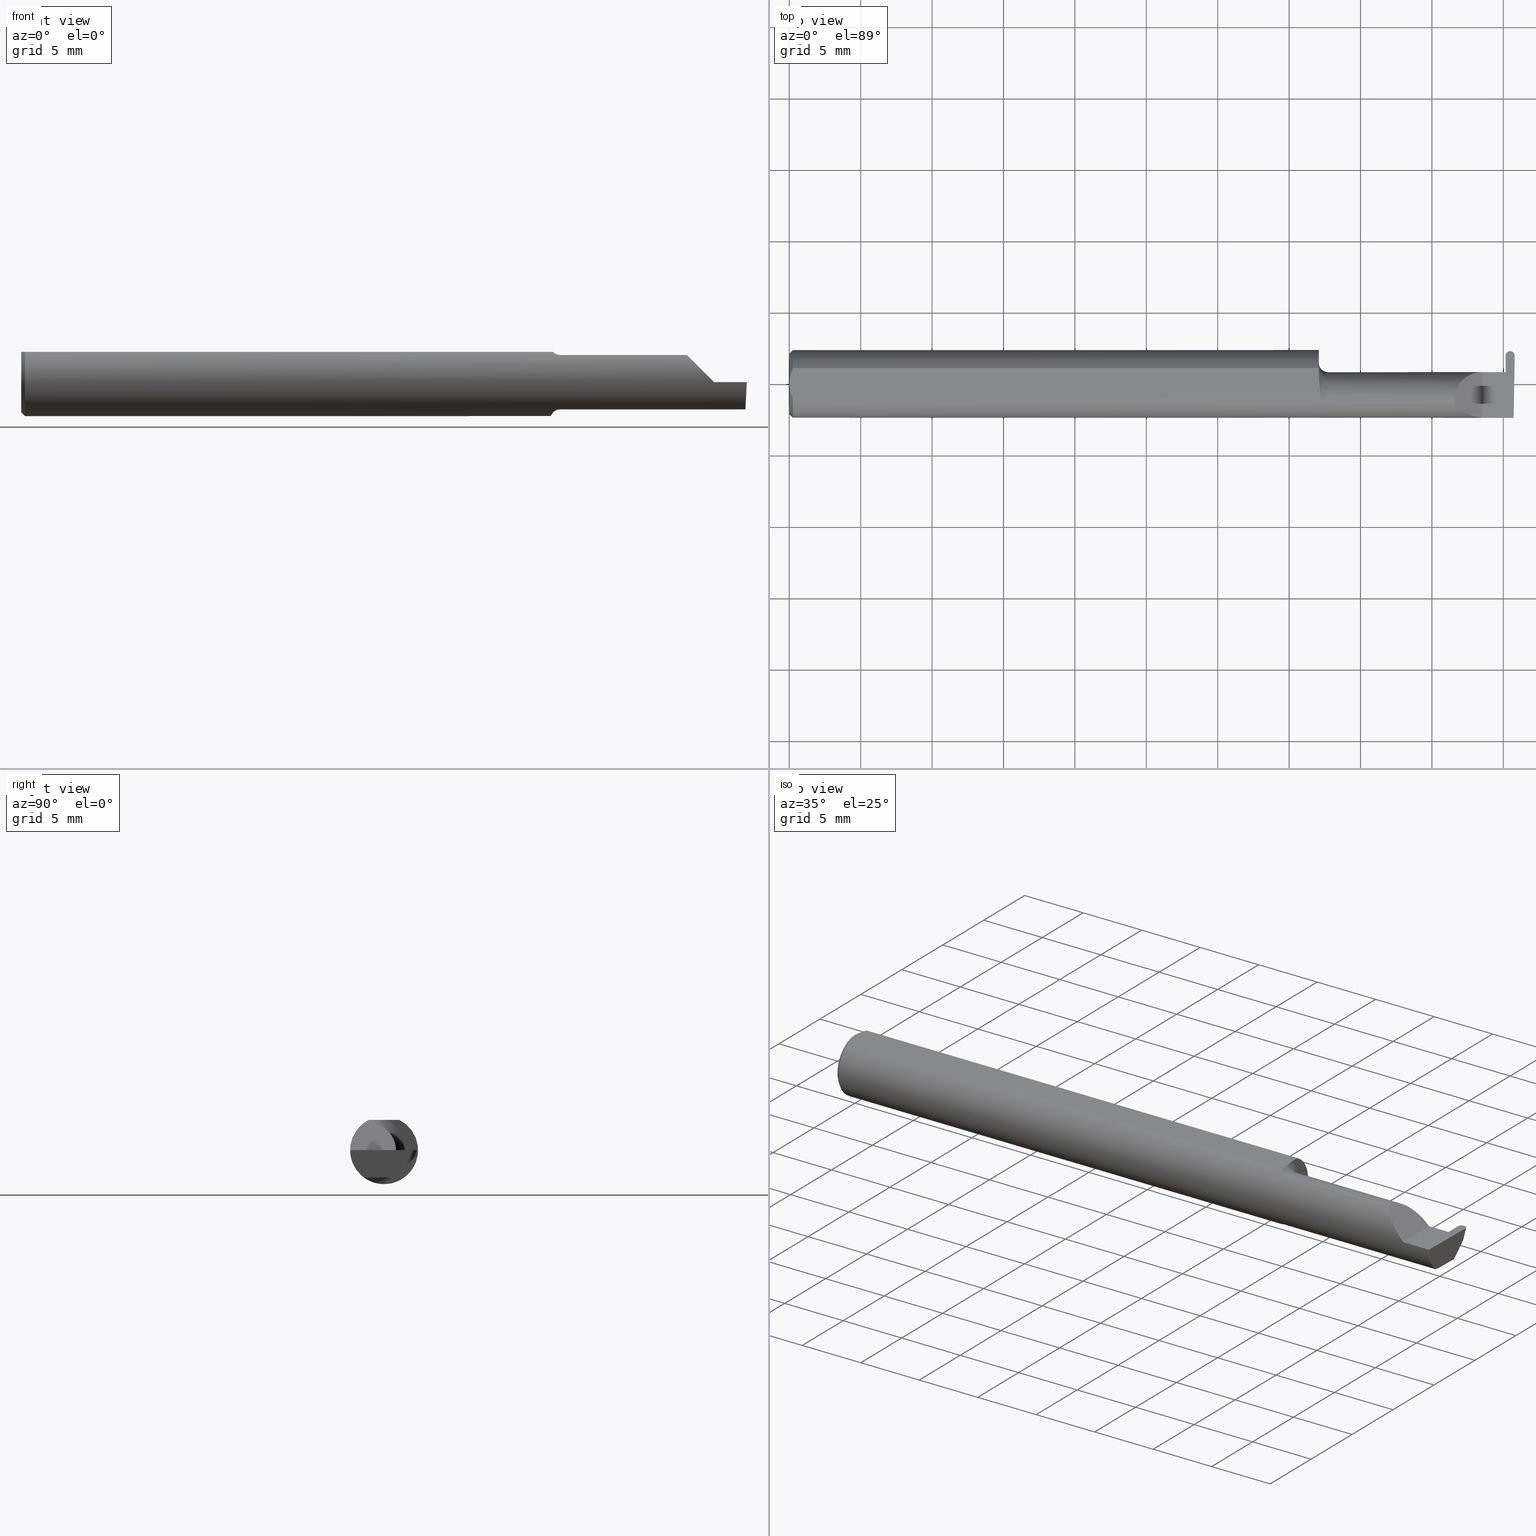
[diagram: canonical four-view strip — front | top / right | iso, engineering-drawing reading convention]
A machine part, canonical four-view strip (front | top / right | iso — engineering-drawing reading convention). The complete STEP part file that produces these views, byte-faithful:
ISO-10303-21;
HEADER;
FILE_DESCRIPTION (( 'STEP AP203' ),
    '1' );
FILE_NAME ('221822-GFR025K-8.STEP',
    '2024-06-17T19:12:52',
    ( '' ),
    ( '' ),
    'SwSTEP 2.0',
    'SolidWorks 2022',
    '' );
FILE_SCHEMA (( 'CONFIG_CONTROL_DESIGN' ));
ENDSEC;

DATA;
#1 = CARTESIAN_POINT ( 'NONE',  ( 1.459999999999999964, 0.03221730376948610253, -0.005231735530819335914 ) ) ;
#2 = VERTEX_POINT ( 'NONE', #471 ) ;
#3 = EDGE_CURVE ( 'NONE', #436, #101, #521, .T. ) ;
#4 = DIRECTION ( 'NONE',  ( 0.000000000000000000, 0.000000000000000000, -1.000000000000000000 ) ) ;
#5 = CARTESIAN_POINT ( 'NONE',  ( 1.459999999999999964, -0.04260000000000005449, 0.000000000000000000 ) ) ;
#6 = ORIENTED_EDGE ( 'NONE', *, *, #169, .F. ) ;
#7 = DIRECTION ( 'NONE',  ( 0.9992386149554827179, 0.01744177490282189033, 0.03489949670250104552 ) ) ;
#8 = CARTESIAN_POINT ( 'NONE',  ( 0.000000000000000000, 0.000000000000000000, 0.08359999999999991049 ) ) ;
#9 = DIRECTION ( 'NONE',  ( 7.095197676276959543E-16, -0.9993908270190957621, 0.03489949670250104552 ) ) ;
#10 = DIRECTION ( 'NONE',  ( -0.01745240643727441823, -0.9998476951563912696, 0.000000000000000000 ) ) ;
#11 = AXIS2_PLACEMENT_3D ( 'NONE', #94, #178, #412 ) ;
#12 = ORIENTED_EDGE ( 'NONE', *, *, #303, .T. ) ;
#13 = CC_DESIGN_DATE_AND_TIME_ASSIGNMENT ( #235, #469, ( #269 ) ) ;
#14 = CARTESIAN_POINT ( 'NONE',  ( 1.994909003141931425, 0.09040000000000000813, -9.406295376684357008E-19 ) ) ;
#15 = LINE ( 'NONE', #544, #563 ) ;
#16 = CARTESIAN_POINT ( 'NONE',  ( 1.996507080450274474, 0.02748456554894272708, -0.07500000000000002498 ) ) ;
#17 = CARTESIAN_POINT ( 'NONE',  ( 0.000000000000000000, 0.000000000000000000, 0.08359999999999991049 ) ) ;
#18 = ORIENTED_EDGE ( 'NONE', *, *, #247, .T. ) ;
#19 = CARTESIAN_POINT ( 'NONE',  ( 1.974475153926879667, 0.07741385304294044756, 0.000000000000000000 ) ) ;
#20 = CARTESIAN_POINT ( 'NONE',  ( 1.975260873654413052, 0.03239999999999999825, 0.000000000000000000 ) ) ;
#21 = VERTEX_POINT ( 'NONE', #227 ) ;
#22 = APPLICATION_PROTOCOL_DEFINITION ( 'international standard', 'config_control_design', 1994, #250 ) ;
#23 = CARTESIAN_POINT ( 'NONE',  ( 1.459999999999999964, 0.000000000000000000, 0.000000000000000000 ) ) ;
#24 = PLANE ( 'NONE',  #608 ) ;
#25 = CARTESIAN_POINT ( 'NONE',  ( 1.995069675717878299, -0.05810704225352106983, -0.07337936794867833123 ) ) ;
#26 = ORIENTED_EDGE ( 'NONE', *, *, #420, .F. ) ;
#27 = DATE_AND_TIME ( #300, #296 ) ;
#28 = DIRECTION ( 'NONE',  ( 1.000000000000000000, 3.318744227790140248E-17, 0.000000000000000000 ) ) ;
#29 = AXIS2_PLACEMENT_3D ( 'NONE', #332, #285, #664 ) ;
#30 = ADVANCED_FACE ( 'NONE', ( #413 ), #240, .T. ) ;
#31 = ORIENTED_EDGE ( 'NONE', *, *, #335, .F. ) ;
#32 = APPLICATION_CONTEXT ( 'configuration controlled 3d designs of mechanical parts and assemblies' ) ;
#33 = PERSON_AND_ORGANIZATION_ROLE ( 'creator' ) ;
#34 = FACE_OUTER_BOUND ( 'NONE', #380, .T. ) ;
#35 = FACE_OUTER_BOUND ( 'NONE', #199, .T. ) ;
#36 = COORDINATED_UNIVERSAL_TIME_OFFSET ( 8, 0, .BEHIND. ) ;
#37 = CARTESIAN_POINT ( 'NONE',  ( 1.461762116932663336, -0.02818790137206265284, -0.08941930521177111901 ) ) ;
#38 = ORIENTED_EDGE ( 'NONE', *, *, #214, .T. ) ;
#39 = ADVANCED_FACE ( 'NONE', ( #35 ), #24, .F. ) ;
#40 = DIRECTION ( 'NONE',  ( -0.001239419280281404490, 0.9999992319196288060, 0.000000000000000000 ) ) ;
#41 = APPROVAL ( #411, 'UNSPECIFIED' ) ;
#42 = VECTOR ( 'NONE', #328, 39.37007874015748143 ) ;
#43 = ORIENTED_EDGE ( 'NONE', *, *, #350, .F. ) ;
#44 = PERSON_AND_ORGANIZATION ( #659, #378 ) ;
#45 = LINE ( 'NONE', #531, #63 ) ;
#46 = ORIENTED_EDGE ( 'NONE', *, *, #247, .F. ) ;
#47 = CARTESIAN_POINT ( 'NONE',  ( 1.994417419800680769, 0.08287919070721785908, -0.01960537484172428582 ) ) ;
#48 = ORIENTED_EDGE ( 'NONE', *, *, #542, .F. ) ;
#49 = DIRECTION ( 'NONE',  ( -0.02596452850600439871, 0.7068683906002057871, 0.7068683906002134476 ) ) ;
#50 = CARTESIAN_POINT ( 'NONE',  ( 1.969065783658063173, 0.03221730376948680336, -0.005231735530809635340 ) ) ;
#51 = ORIENTED_EDGE ( 'NONE', *, *, #85, .F. ) ;
#52 = PLANE ( 'NONE',  #585 ) ;
#53 = AXIS2_PLACEMENT_3D ( 'NONE', #602, #427, #4 ) ;
#54 = CARTESIAN_POINT ( 'NONE',  ( 1.999986840374342822, 0.07677130609030106967, 0.000000000000000000 ) ) ;
#55 = VERTEX_POINT ( 'NONE', #463 ) ;
#56 = CARTESIAN_POINT ( 'NONE',  ( 1.484999999999999876, -0.04260000000000005449, 0.000000000000000000 ) ) ;
#57 = FACE_OUTER_BOUND ( 'NONE', #158, .T. ) ;
#58 = LINE ( 'NONE', #201, #145 ) ;
#59 = EDGE_CURVE ( 'NONE', #244, #586, #675, .T. ) ;
#60 = DIRECTION ( 'NONE',  ( -1.000000000000000000, -0.000000000000000000, -0.000000000000000000 ) ) ;
#61 = VECTOR ( 'NONE', #393, 39.37007874015748143 ) ;
#62 = CARTESIAN_POINT ( 'NONE',  ( 1.969126682401567408, 0.03227820251299119703, -0.003487823687206417778 ) ) ;
#63 = VECTOR ( 'NONE', #692, 39.37007874015748143 ) ;
#64 = ORIENTED_EDGE ( 'NONE', *, *, #359, .T. ) ;
#65 = CARTESIAN_POINT ( 'NONE',  ( 1.729736605000000038, -0.05810704225352107677, -0.07337936794867833123 ) ) ;
#66 = DIRECTION ( 'NONE',  ( -3.318744227790140248E-17, 1.000000000000000000, 0.000000000000000000 ) ) ;
#67 = ORIENTED_EDGE ( 'NONE', *, *, #146, .F. ) ;
#68 = EDGE_CURVE ( 'NONE', #2, #441, #294, .T. ) ;
#69 = FACE_OUTER_BOUND ( 'NONE', #203, .T. ) ;
#70 = FACE_OUTER_BOUND ( 'NONE', #484, .T. ) ;
#71 = ADVANCED_FACE ( 'NONE', ( #57 ), #536, .T. ) ;
#72 = ORIENTED_EDGE ( 'NONE', *, *, #615, .T. ) ;
#73 = DIRECTION ( 'NONE',  ( -0.03549161113179505334, 0.03487750912278161919, 0.9987611851171729338 ) ) ;
#74 = CARTESIAN_POINT ( 'NONE',  ( 1.995192704155888785, -0.04781600192481509637, -0.07500000000000006661 ) ) ;
#75 = DIMENSIONAL_EXPONENTS ( 1.000000000000000000, 0.000000000000000000, 0.000000000000000000, 0.000000000000000000, 0.000000000000000000, 0.000000000000000000, 0.000000000000000000 ) ;
#76 = ORIENTED_EDGE ( 'NONE', *, *, #527, .T. ) ;
#77 = CARTESIAN_POINT ( 'NONE',  ( 1.995996405735428469, -0.09359999999999997489, -0.02910696448121681199 ) ) ;
#78 = EDGE_CURVE ( 'NONE', #581, #233, #408, .T. ) ;
#79 = EDGE_LOOP ( 'NONE', ( #601, #339, #545, #570, #532, #557 ) ) ;
#80 = DATE_AND_TIME ( #578, #403 ) ;
#81 = CARTESIAN_POINT ( 'NONE',  ( 1.466206319820905213, -0.04283575577410227847, -0.08338874798717356429 ) ) ;
#82 = ORIENTED_EDGE ( 'NONE', *, *, #234, .T. ) ;
#83 = DIRECTION ( 'NONE',  ( 0.000000000000000000, 0.000000000000000000, -1.000000000000000000 ) ) ;
#84 = VERTEX_POINT ( 'NONE', #205 ) ;
#85 = EDGE_CURVE ( 'NONE', #441, #192, #591, .T. ) ;
#86 = CARTESIAN_POINT ( 'NONE',  ( 1.910000000000000142, 0.03239999999999998437, 6.613092715395735816E-17 ) ) ;
#87 = APPROVAL_ROLE ( '' ) ;
#88 = CARTESIAN_POINT ( 'NONE',  ( 1.995069675717878299, -0.05810704225352106983, -0.07337936794867833123 ) ) ;
#89 = EDGE_CURVE ( 'NONE', #266, #120, #446, .T. ) ;
#90 = LOCAL_TIME ( 12, 12, 52.00000000000000000, #245 ) ;
#91 = VECTOR ( 'NONE', #514, 39.37007874015748143 ) ;
#92 = EDGE_LOOP ( 'NONE', ( #684, #697, #221, #512, #638, #417, #6, #308, #541 ) ) ;
#93 = VECTOR ( 'NONE', #40, 39.37007874015748854 ) ;
#94 = CARTESIAN_POINT ( 'NONE',  ( 1.459999999999999964, 0.09359999999999996101, 0.000000000000000000 ) ) ;
#95 = ORIENTED_EDGE ( 'NONE', *, *, #112, .F. ) ;
#96 = CARTESIAN_POINT ( 'NONE',  ( 1.466129652885479473, -0.04209513035970117306, 0.08359999999999991049 ) ) ;
#97 = PLANE ( 'NONE',  #405 ) ;
#98 = EDGE_CURVE ( 'NONE', #620, #123, #603, .T. ) ;
#99 = EDGE_LOOP ( 'NONE', ( #604, #362, #171, #351, #72 ) ) ;
#100 = CARTESIAN_POINT ( 'NONE',  ( 1.987236605000000100, 0.08345985621932504317, -0.01902470932961709826 ) ) ;
#101 = VERTEX_POINT ( 'NONE', #499 ) ;
#102 = CARTESIAN_POINT ( 'NONE',  ( 1.984422275622966580, 0.06407237889530596753, -0.07233454449310373902 ) ) ;
#103 = LINE ( 'NONE', #321, #584 ) ;
#104 = EDGE_CURVE ( 'NONE', #537, #620, #15, .T. ) ;
#105 = LINE ( 'NONE', #381, #286 ) ;
#106 = LINE ( 'NONE', #596, #42 ) ;
#107 = ORIENTED_EDGE ( 'NONE', *, *, #78, .T. ) ;
#108 = CARTESIAN_POINT ( 'NONE',  ( 1.974539839182260614, 0.1197494621322279795, 0.01726489658328622667 ) ) ;
#109 = CARTESIAN_POINT ( 'NONE',  ( 1.975446786689251333, 0.03221730376948541558, -0.005231735530809524318 ) ) ;
#110 = CARTESIAN_POINT ( 'NONE',  ( 1.461463898467976863, -0.005727447913487270295, 0.08359999999999991049 ) ) ;
#111 = DIRECTION ( 'NONE',  ( -0.03876062227022298440, 0.3417631236437465025, 0.9389864650134710500 ) ) ;
#112 = EDGE_CURVE ( 'NONE', #371, #441, #313, .T. ) ;
#113 = VERTEX_POINT ( 'NONE', #154 ) ;
#114 = PLANE ( 'NONE',  #330 ) ;
#115 = CARTESIAN_POINT ( 'NONE',  ( 1.969248479888576320, 0.03239999999999999825, 0.000000000000000000 ) ) ;
#116 = PRODUCT ( '221822-GFR025K-8', '221822-GFR025K-8', '', ( #415 ) ) ;
#117 =( BOUNDED_CURVE ( )  B_SPLINE_CURVE ( 3, ( #159, #47, #543, #196 ),
 .UNSPECIFIED., .F., .F. ) 
 B_SPLINE_CURVE_WITH_KNOTS ( ( 4, 4 ),
 ( 3.171655575341799871, 4.698770164224572277 ),
 .UNSPECIFIED. ) 
 CURVE ( )  GEOMETRIC_REPRESENTATION_ITEM ( )  RATIONAL_B_SPLINE_CURVE ( ( 1.000000000000000000, 0.8149204888834234994, 0.8149204888834234994, 1.000000000000000000 ) ) 
 REPRESENTATION_ITEM ( '' )  );
#118 =( LENGTH_UNIT ( ) NAMED_UNIT ( * ) SI_UNIT ( $, .METRE. ) );
#119 = DIRECTION ( 'NONE',  ( 1.000000000000000000, 0.000000000000000000, 0.000000000000000000 ) ) ;
#120 = VERTEX_POINT ( 'NONE', #100 ) ;
#121 = CARTESIAN_POINT ( 'NONE',  ( 2.000126064110226753, 0.08474742857719365363, -1.579535239246384574E-18 ) ) ;
#122 = CARTESIAN_POINT ( 'NONE',  ( 0.0009807498324118613890, 0.01453516766257752398, 0.08359999999999992437 ) ) ;
#123 = VERTEX_POINT ( 'NONE', #652 ) ;
#124 = ADVANCED_FACE ( 'NONE', ( #316 ), #641, .T. ) ;
#125 = PERSON_AND_ORGANIZATION ( #659, #378 ) ;
#126 = CARTESIAN_POINT ( 'NONE',  ( 1.984079623811642046, 0.1047419942680739707, 0.07668281150356018316 ) ) ;
#127 = CC_DESIGN_PERSON_AND_ORGANIZATION_ASSIGNMENT ( #241, #424, ( #269 ) ) ;
#128 = ORIENTED_EDGE ( 'NONE', *, *, #555, .F. ) ;
#129 = CALENDAR_DATE ( 2024, 17, 6 ) ;
#130 = CARTESIAN_POINT ( 'NONE',  ( 1.484999999999999876, -0.05810704225352104901, -0.07337936794867834511 ) ) ;
#131 = ORIENTED_EDGE ( 'NONE', *, *, #569, .T. ) ;
#132 = COORDINATED_UNIVERSAL_TIME_OFFSET ( 8, 0, .BEHIND. ) ;
#133 = PLANE ( 'NONE',  #11 ) ;
#134 = APPROVAL_PERSON_ORGANIZATION ( #295, #41, #87 ) ;
#135 = EDGE_CURVE ( 'NONE', #123, #371, #106, .T. ) ;
#136 = VECTOR ( 'NONE', #495, 39.37007874015748143 ) ;
#137 = ORIENTED_EDGE ( 'NONE', *, *, #104, .F. ) ;
#138 = PERSON_AND_ORGANIZATION_ROLE ( 'creator' ) ;
#139 = DIRECTION ( 'NONE',  ( 1.000000000000000000, 3.318744227790140248E-17, 0.000000000000000000 ) ) ;
#140 = PERSON_AND_ORGANIZATION ( #659, #378 ) ;
#141 = CARTESIAN_POINT ( 'NONE',  ( 1.979564206858069220, 0.09040000000000021629, 9.406295376684195230E-19 ) ) ;
#142 = ORIENTED_EDGE ( 'NONE', *, *, #359, .F. ) ;
#143 = CARTESIAN_POINT ( 'NONE',  ( 1.910000000000000142, -0.09360000000000005815, 1.102182119232621301E-17 ) ) ;
#144 = EDGE_LOOP ( 'NONE', ( #505, #457, #26, #177, #646 ) ) ;
#145 = VECTOR ( 'NONE', #376, 39.37007874015748143 ) ;
#146 = EDGE_CURVE ( 'NONE', #192, #322, #442, .T. ) ;
#147 = DIRECTION ( 'NONE',  ( -1.000000000000000000, -0.000000000000000000, -0.000000000000000000 ) ) ;
#148 = CARTESIAN_POINT ( 'NONE',  ( 1.978551769901040647, -1.946488684219110255, -0.02361696348642888105 ) ) ;
#149 = ORIENTED_EDGE ( 'NONE', *, *, #670, .F. ) ;
#150 = CARTESIAN_POINT ( 'NONE',  ( 1.470033121973953527, -0.04963861219531613689, 0.07943694244057658560 ) ) ;
#151 = CARTESIAN_POINT ( 'NONE',  ( 2.387527623501553705E-17, -0.01462709520273675068, 0.08359999999999991049 ) ) ;
#152 = ORIENTED_EDGE ( 'NONE', *, *, #223, .T. ) ;
#153 = CARTESIAN_POINT ( 'NONE',  ( 1.480292432600753827, -0.05747478081012627471, 0.07388601572377852256 ) ) ;
#154 = CARTESIAN_POINT ( 'NONE',  ( 1.484999999999999876, -0.05810704225352104207, 0.07337936794867834511 ) ) ;
#155 = VERTEX_POINT ( 'NONE', #588 ) ;
#156 = PLANE ( 'NONE',  #366 ) ;
#157 = DIRECTION ( 'NONE',  ( -1.000000000000000000, -3.318744227790140248E-17, -0.000000000000000000 ) ) ;
#158 = EDGE_LOOP ( 'NONE', ( #152, #502, #429, #38, #666, #67, #51, #95, #629, #618 ) ) ;
#159 = CARTESIAN_POINT ( 'NONE',  ( 1.987236605000000100, 0.08345985621932504317, -0.01902470932961709826 ) ) ;
#160 = LINE ( 'NONE', #19, #451 ) ;
#161 = CARTESIAN_POINT ( 'NONE',  ( 1.459999999999999964, 0.01227294415283370320, 0.08359999999999991049 ) ) ;
#162 = CC_DESIGN_APPROVAL ( #217, ( #269 ) ) ;
#163 = DIRECTION ( 'NONE',  ( 0.000000000000000000, -0.9396926207859084279, 0.3420201433256686019 ) ) ;
#164 = CC_DESIGN_PERSON_AND_ORGANIZATION_ASSIGNMENT ( #513, #193, ( #674 ) ) ;
#165 = DIRECTION ( 'NONE',  ( -0.01745240643727524049, 0.9998476951563914916, -0.000000000000000000 ) ) ;
#166 = LINE ( 'NONE', #20, #518 ) ;
#167 = CARTESIAN_POINT ( 'NONE',  ( 2.000000000000000000, -0.2500000000000000555, 0.000000000000000000 ) ) ;
#168 = DIRECTION ( 'NONE',  ( -0.03701368837992301264, -0.7066222423871552083, -0.7066222423871628688 ) ) ;
#169 = EDGE_CURVE ( 'NONE', #55, #436, #103, .T. ) ;
#170 = ORIENTED_EDGE ( 'NONE', *, *, #399, .T. ) ;
#171 = ORIENTED_EDGE ( 'NONE', *, *, #477, .F. ) ;
#172 = CARTESIAN_POINT ( 'NONE',  ( 1.987408188690569011, 0.09039999999999999425, 0.000000000000000000 ) ) ;
#173 = LINE ( 'NONE', #65, #91 ) ;
#174 = VECTOR ( 'NONE', #500, 39.37007874015747433 ) ;
#175 = CIRCLE ( 'NONE', #465, 0.09999999999999999167 ) ;
#176 = AXIS2_PLACEMENT_3D ( 'NONE', #625, #467, #83 ) ;
#177 = ORIENTED_EDGE ( 'NONE', *, *, #284, .F. ) ;
#178 = DIRECTION ( 'NONE',  ( 1.000000000000000000, 3.318744227790140248E-17, 0.000000000000000000 ) ) ;
#179 = CARTESIAN_POINT ( 'NONE',  ( 1.854690286057536941, -0.08092595952420821026, 0.05530971394246249340 ) ) ;
#180 = ORIENTED_EDGE ( 'NONE', *, *, #340, .T. ) ;
#181 = SECURITY_CLASSIFICATION_LEVEL ( 'unclassified' ) ;
#182 = UNCERTAINTY_MEASURE_WITH_UNIT (LENGTH_MEASURE( 1.000000000000000082E-05 ), #278, 'distance_accuracy_value', 'NONE');
#183 = CARTESIAN_POINT ( 'NONE',  ( 1.462856118429613828, -0.03323074941465640336, -0.08766015375840491286 ) ) ;
#184 = VERTEX_POINT ( 'NONE', #54 ) ;
#185 = B_SPLINE_CURVE_WITH_KNOTS ( 'NONE', 3,
 ( #617, #661, #122, #343, #621, #279 ),
 .UNSPECIFIED., .F., .F.,
 ( 4, 2, 4 ),
 ( 0.001744210492668864416, 0.002295110172257193264, 0.002846009851845522111 ),
 .UNSPECIFIED. ) ;
#186 = PERSON_AND_ORGANIZATION ( #659, #378 ) ;
#187 = CARTESIAN_POINT ( 'NONE',  ( 1.975260873654413052, 0.03239999999999999825, 0.000000000000000000 ) ) ;
#188 = ADVANCED_FACE ( 'NONE', ( #324 ), #547, .F. ) ;
#189 = CONICAL_SURFACE ( 'NONE', #176, 0.08359999999999989662, 0.7853981633974458365 ) ;
#190 = ADVANCED_FACE ( 'NONE', ( #655 ), #97, .F. ) ;
#191 = LINE ( 'NONE', #236, #519 ) ;
#192 = VERTEX_POINT ( 'NONE', #50 ) ;
#193 = PERSON_AND_ORGANIZATION_ROLE ( 'design_supplier' ) ;
#194 = PLANE ( 'NONE',  #506 ) ;
#195 = VERTEX_POINT ( 'NONE', #255 ) ;
#196 = CARTESIAN_POINT ( 'NONE',  ( 1.998318014211375448, 0.06205680439066463272, -0.04042776115827773770 ) ) ;
#197 = ORIENTED_EDGE ( 'NONE', *, *, #284, .T. ) ;
#198 = APPROVAL_PERSON_ORGANIZATION ( #186, #277, #691 ) ;
#199 = EDGE_LOOP ( 'NONE', ( #76, #197, #262 ) ) ;
#200 = TOROIDAL_SURFACE ( 'NONE', #676, 0.09999999999999999167, 0.02499999999999993894 ) ;
#201 = CARTESIAN_POINT ( 'NONE',  ( 0.000000000000000000, 0.000000000000000000, -0.08359999999999989662 ) ) ;
#202 = CARTESIAN_POINT ( 'NONE',  ( 0.01000000000000016674, -0.04209513035969864037, 0.08359999999999988274 ) ) ;
#203 = EDGE_LOOP ( 'NONE', ( #493, #131 ) ) ;
#204 = DIRECTION ( 'NONE',  ( 0.000000000000000000, 0.000000000000000000, -1.000000000000000000 ) ) ;
#205 = CARTESIAN_POINT ( 'NONE',  ( 1.484999999999999876, -0.05810704225352104901, -0.07337936794867834511 ) ) ;
#206 = EDGE_LOOP ( 'NONE', ( #367, #402, #388, #464, #149 ) ) ;
#207 = PLANE ( 'NONE',  #209 ) ;
#208 = ORIENTED_EDGE ( 'NONE', *, *, #369, .F. ) ;
#209 = AXIS2_PLACEMENT_3D ( 'NONE', #437, #559, #503 ) ;
#210 = CARTESIAN_POINT ( 'NONE',  ( 1.729736605000000038, -0.05810704225352107677, 0.07337936794867833123 ) ) ;
#211 = AXIS2_PLACEMENT_3D ( 'NONE', #361, #637, #580 ) ;
#212 = CARTESIAN_POINT ( 'NONE',  ( -3.937007874019685528E-05, 0.08348456554894213844, -0.01899999999999999953 ) ) ;
#213 = CARTESIAN_POINT ( 'NONE',  ( 1.910000000000000142, 0.03239999999999998437, 6.613092715395735816E-17 ) ) ;
#214 = EDGE_CURVE ( 'NONE', #101, #460, #270, .T. ) ;
#215 = CARTESIAN_POINT ( 'NONE',  ( 1.999986840374342822, 0.07677130609030106967, 0.000000000000000000 ) ) ;
#216 = CARTESIAN_POINT ( 'NONE',  ( 1.987065021309431190, 0.09039999999999999425, 0.000000000000000000 ) ) ;
#217 = APPROVAL ( #627, 'UNSPECIFIED' ) ;
#218 = ORIENTED_EDGE ( 'NONE', *, *, #455, .F. ) ;
#219 = LOCAL_TIME ( 12, 12, 52.00000000000000000, #571 ) ;
#220 = LINE ( 'NONE', #407, #551 ) ;
#221 = ORIENTED_EDGE ( 'NONE', *, *, #644, .F. ) ;
#222 = DIRECTION ( 'NONE',  ( -0.7071067811865507924, 0.000000000000000000, 0.7071067811865441310 ) ) ;
#223 = EDGE_CURVE ( 'NONE', #391, #84, #173, .T. ) ;
#224 = CARTESIAN_POINT ( 'NONE',  ( -3.937007874019685528E-05, 0.09039999999999999425, 0.000000000000000000 ) ) ;
#225 = DIRECTION ( 'NONE',  ( 0.03876062227022269990, 0.3417631236437463915, 0.9389864650134709390 ) ) ;
#226 = CARTESIAN_POINT ( 'NONE',  ( 1.995302472377616931, -0.08092595952420821026, -0.05530971394246247952 ) ) ;
#227 = CARTESIAN_POINT ( 'NONE',  ( 0.01000000000000016674, 0.04209513035969864037, 0.08359999999999988274 ) ) ;
#228 = ADVANCED_FACE ( 'NONE', ( #70 ), #333, .F. ) ;
#229 = ORIENTED_EDGE ( 'NONE', *, *, #592, .F. ) ;
#230 = CARTESIAN_POINT ( 'NONE',  ( 2.115884466375952400, -0.04259999999999973530, -0.07500000000000002498 ) ) ;
#231 = VECTOR ( 'NONE', #498, 39.37007874015748143 ) ;
#232 = AXIS2_PLACEMENT_3D ( 'NONE', #382, #60, #377 ) ;
#233 = VERTEX_POINT ( 'NONE', #17 ) ;
#234 = EDGE_CURVE ( 'NONE', #436, #460, #458, .T. ) ;
#235 = DATE_AND_TIME ( #680, #486 ) ;
#236 = CARTESIAN_POINT ( 'NONE',  ( 1.974477840987134192, 0.07684650545427940127, 0.0002066085544878476163 ) ) ;
#237 = VERTEX_POINT ( 'NONE', #161 ) ;
#238 = APPLICATION_PROTOCOL_DEFINITION ( 'international standard', 'config_control_design', 1994, #32 ) ;
#239 = DIRECTION ( 'NONE',  ( 0.000000000000000000, 0.000000000000000000, 1.000000000000000000 ) ) ;
#240 = PLANE ( 'NONE',  #440 ) ;
#241 = PERSON_AND_ORGANIZATION ( #659, #378 ) ;
#242 = LINE ( 'NONE', #422, #243 ) ;
#243 = VECTOR ( 'NONE', #139, 39.37007874015748143 ) ;
#244 = VERTEX_POINT ( 'NONE', #216 ) ;
#245 = COORDINATED_UNIVERSAL_TIME_OFFSET ( 8, 0, .BEHIND. ) ;
#246 = CARTESIAN_POINT ( 'NONE',  ( 1.978015968337363928, -0.04277087700585947838, -0.07500000000000002498 ) ) ;
#247 = EDGE_CURVE ( 'NONE', #237, #347, #175, .T. ) ;
#248 = CC_DESIGN_PERSON_AND_ORGANIZATION_ASSIGNMENT ( #479, #33, ( #674 ) ) ;
#249 = ORIENTED_EDGE ( 'NONE', *, *, #344, .F. ) ;
#250 = APPLICATION_CONTEXT ( 'configuration controlled 3d designs of mechanical parts and assemblies' ) ;
#251 = CYLINDRICAL_SURFACE ( 'NONE', #356, 0.01274999999999999745 ) ;
#252 = B_SPLINE_CURVE_WITH_KNOTS ( 'NONE', 3,
 ( #509, #449, #613, #110, #657, #326 ),
 .UNSPECIFIED., .F., .F.,
 ( 4, 2, 4 ),
 ( 0.009672910729349521591, 0.01035804079918429231, 0.01104317086901906303 ),
 .UNSPECIFIED. ) ;
#253 = ORIENTED_EDGE ( 'NONE', *, *, #542, .T. ) ;
#254 = DIRECTION ( 'NONE',  ( 0.000000000000000000, -0.03489949670250104552, -0.9993908270190957621 ) ) ;
#255 = CARTESIAN_POINT ( 'NONE',  ( 0.01000000000000016674, 0.000000000000000000, -0.09360000000000001652 ) ) ;
#256 =( GEOMETRIC_REPRESENTATION_CONTEXT ( 3 ) GLOBAL_UNCERTAINTY_ASSIGNED_CONTEXT ( ( #182 ) ) GLOBAL_UNIT_ASSIGNED_CONTEXT ( ( #278, #565, #272 ) ) REPRESENTATION_CONTEXT ( 'NONE', 'WORKASPACE' ) );
#257 = AXIS2_PLACEMENT_3D ( 'NONE', #126, #111, #163 ) ;
#258 = VERTEX_POINT ( 'NONE', #610 ) ;
#259 = DIRECTION ( 'NONE',  ( 0.000000000000000000, 0.9396926207859082059, -0.3420201433256692125 ) ) ;
#260 = DIRECTION ( 'NONE',  ( 0.000000000000000000, -1.000000000000000000, 0.000000000000000000 ) ) ;
#261 =( BOUNDED_CURVE ( )  B_SPLINE_CURVE ( 3, ( #215, #121, #14, #172 ),
 .UNSPECIFIED., .F., .T. ) 
 B_SPLINE_CURVE_WITH_KNOTS ( ( 4, 4 ),
 ( 1.672436806532649367, 3.247686724355377752 ),
 .UNSPECIFIED. ) 
 CURVE ( )  GEOMETRIC_REPRESENTATION_ITEM ( )  RATIONAL_B_SPLINE_CURVE ( ( 1.000000000000000000, 0.8036869647627060687, 0.8036869647627060687, 1.000000000000000000 ) ) 
 REPRESENTATION_ITEM ( '' )  );
#262 = ORIENTED_EDGE ( 'NONE', *, *, #59, .T. ) ;
#263 = CARTESIAN_POINT ( 'NONE',  ( 1.459999999999999964, 0.04209513035969864037, 0.08359999999999988274 ) ) ;
#264 = CARTESIAN_POINT ( 'NONE',  ( 1.978015756548945348, -0.04260000000000003367, -0.07500000000000002498 ) ) ;
#265 = PRODUCT_RELATED_PRODUCT_CATEGORY ( 'detail', '', ( #116 ) ) ;
#266 = VERTEX_POINT ( 'NONE', #668 ) ;
#267 = DIRECTION ( 'NONE',  ( -1.000000000000000000, -3.318744227790140248E-17, -0.000000000000000000 ) ) ;
#268 = CARTESIAN_POINT ( 'NONE',  ( 1.969065783658063173, 0.03221730376948680336, -0.005231735530809635340 ) ) ;
#269 = SECURITY_CLASSIFICATION ( '', '', #181 ) ;
#270 =( BOUNDED_CURVE ( )  B_SPLINE_CURVE ( 3, ( #501, #448, #673, #213 ),
 .UNSPECIFIED., .F., .T. ) 
 B_SPLINE_CURVE_WITH_KNOTS ( ( 4, 4 ),
 ( 6.074922494366330916, 7.853981633974482790 ),
 .UNSPECIFIED. ) 
 CURVE ( )  GEOMETRIC_REPRESENTATION_ITEM ( )  RATIONAL_B_SPLINE_CURVE ( ( 1.000000000000000000, 0.7531850099525148057, 0.7531850099525148057, 1.000000000000000000 ) ) 
 REPRESENTATION_ITEM ( '' )  );
#271 = CLOSED_SHELL ( 'NONE', ( #439, #523, #124, #228, #679, #30, #374, #694, #71, #497, #447, #384, #39, #188, #474, #599, #190, #564, #317 ) ) ;
#272 =( NAMED_UNIT ( * ) SI_UNIT ( $, .STERADIAN. ) SOLID_ANGLE_UNIT ( ) );
#273 = AXIS2_PLACEMENT_3D ( 'NONE', #485, #147, #654 ) ;
#274 = DIRECTION ( 'NONE',  ( 0.000000000000000000, -0.7071067811865513475, 0.7071067811865436870 ) ) ;
#275 = EDGE_CURVE ( 'NONE', #325, #620, #401, .T. ) ;
#276 = ORIENTED_EDGE ( 'NONE', *, *, #622, .T. ) ;
#277 = APPROVAL ( #292, 'UNSPECIFIED' ) ;
#278 =( CONVERSION_BASED_UNIT ( 'INCH', #561 ) LENGTH_UNIT ( ) NAMED_UNIT ( #75 ) );
#279 = CARTESIAN_POINT ( 'NONE',  ( 0.01000000000000016674, 0.04209513035969864037, 0.08359999999999988274 ) ) ;
#280 = ORIENTED_EDGE ( 'NONE', *, *, #615, .F. ) ;
#281 = DIRECTION ( 'NONE',  ( -1.224646799147358877E-16, 0.000000000000000000, -1.000000000000000000 ) ) ;
#282 = CYLINDRICAL_SURFACE ( 'NONE', #257, 0.01274999999999999398 ) ;
#283 = ORIENTED_EDGE ( 'NONE', *, *, #477, .T. ) ;
#284 = EDGE_CURVE ( 'NONE', #266, #244, #220, .T. ) ;
#285 = DIRECTION ( 'NONE',  ( 1.000000000000000000, 0.000000000000000000, 0.000000000000000000 ) ) ;
#286 = VECTOR ( 'NONE', #315, 39.37007874015748143 ) ;
#287 = CARTESIAN_POINT ( 'NONE',  ( 1.910000000000000142, -0.2500000000000000555, 1.102182119232621301E-17 ) ) ;
#288 = CARTESIAN_POINT ( 'NONE',  ( 2.191425808082400728, 0.09360000000000005815, 0.08359999999999991049 ) ) ;
#289 = CARTESIAN_POINT ( 'NONE',  ( 1.975260873654413052, 0.03239999999999999825, -4.732000043842587031E-21 ) ) ;
#290 = CARTESIAN_POINT ( 'NONE',  ( 1.995283749808152374, -0.04259999999999973530, -0.07500000000000002498 ) ) ;
#291 = ORIENTED_EDGE ( 'NONE', *, *, #327, .T. ) ;
#292 = APPROVAL_STATUS ( 'not_yet_approved' ) ;
#293 = CARTESIAN_POINT ( 'NONE',  ( 1.997012998164632958, -0.09360000000000001652, 0.000000000000000000 ) ) ;
#294 = LINE ( 'NONE', #515, #136 ) ;
#295 = PERSON_AND_ORGANIZATION ( #659, #378 ) ;
#296 = LOCAL_TIME ( 12, 12, 52.00000000000000000, #132 ) ;
#297 = VERTEX_POINT ( 'NONE', #606 ) ;
#298 = DIRECTION ( 'NONE',  ( 1.000000000000000000, 0.000000000000000000, 0.000000000000000000 ) ) ;
#299 = ORIENTED_EDGE ( 'NONE', *, *, #275, .F. ) ;
#300 = CALENDAR_DATE ( 2024, 17, 6 ) ;
#301 = CARTESIAN_POINT ( 'NONE',  ( 0.000000000000000000, 0.000000000000000000, -0.08359999999999989662 ) ) ;
#302 = ORIENTED_EDGE ( 'NONE', *, *, #534, .T. ) ;
#303 = EDGE_CURVE ( 'NONE', #233, #21, #185, .T. ) ;
#304 = CARTESIAN_POINT ( 'NONE',  ( 1.987065021309431190, 0.09039999999999999425, 0.000000000000000000 ) ) ;
#305 = CC_DESIGN_APPROVAL ( #277, ( #674 ) ) ;
#306 = AXIS2_PLACEMENT_3D ( 'NONE', #212, #274, #444 ) ;
#307 = AXIS2_PLACEMENT_3D ( 'NONE', #354, #298, #686 ) ;
#308 = ORIENTED_EDGE ( 'NONE', *, *, #656, .F. ) ;
#309 = DIRECTION ( 'NONE',  ( 1.000000000000000000, 0.000000000000000000, -0.000000000000000000 ) ) ;
#310 = ORIENTED_EDGE ( 'NONE', *, *, #430, .T. ) ;
#311 = FACE_OUTER_BOUND ( 'NONE', #206, .T. ) ;
#312 = DIRECTION ( 'NONE',  ( 0.03547001781079536092, 0.000000000000000000, -0.9993707409347653003 ) ) ;
#313 =( BOUNDED_CURVE ( )  B_SPLINE_CURVE ( 3, ( #264, #492, #438, #109 ),
 .UNSPECIFIED., .F., .T. ) 
 B_SPLINE_CURVE_WITH_KNOTS ( ( 4, 4 ),
 ( 3.176499238629678867, 4.677482395344799038 ),
 .UNSPECIFIED. ) 
 CURVE ( )  GEOMETRIC_REPRESENTATION_ITEM ( )  RATIONAL_B_SPLINE_CURVE ( ( 1.000000000000000000, 0.8209024677461143060, 0.8209024677461143060, 1.000000000000000000 ) ) 
 REPRESENTATION_ITEM ( '' )  );
#314 = ORIENTED_EDGE ( 'NONE', *, *, #223, .F. ) ;
#315 = DIRECTION ( 'NONE',  ( -0.03701368837992359551, 0.7066222423871552083, 0.7066222423871628688 ) ) ;
#316 = FACE_OUTER_BOUND ( 'NONE', #682, .T. ) ;
#317 = ADVANCED_FACE ( 'NONE', ( #462 ), #282, .T. ) ;
#318 =( BOUNDED_CURVE ( )  B_SPLINE_CURVE ( 3, ( #304, #141, #677, #475 ),
 .UNSPECIFIED., .F., .F. ) 
 B_SPLINE_CURVE_WITH_KNOTS ( ( 4, 4 ),
 ( 6.177091236413978947, 7.752341154236730425 ),
 .UNSPECIFIED. ) 
 CURVE ( )  GEOMETRIC_REPRESENTATION_ITEM ( )  RATIONAL_B_SPLINE_CURVE ( ( 1.000000000000000000, 0.8036869647627007396, 0.8036869647627007396, 1.000000000000000000 ) ) 
 REPRESENTATION_ITEM ( '' )  );
#319 = ORIENTED_EDGE ( 'NONE', *, *, #455, .T. ) ;
#320 = CARTESIAN_POINT ( 'NONE',  ( 1.984422275622966358, 0.05209129798028563907, -0.06797378766570144615 ) ) ;
#321 = CARTESIAN_POINT ( 'NONE',  ( 2.999519565323742037E-32, -0.09359999999999998876, 2.449293598294716768E-16 ) ) ;
#322 = VERTEX_POINT ( 'NONE', #115 ) ;
#323 = DIRECTION ( 'NONE',  ( -0.03876062227022270684, -0.3417631236437465025, -0.9389864650134710500 ) ) ;
#324 = FACE_OUTER_BOUND ( 'NONE', #653, .T. ) ;
#325 = VERTEX_POINT ( 'NONE', #334 ) ;
#326 = CARTESIAN_POINT ( 'NONE',  ( 1.459999999999999964, 0.01227294415283370320, 0.08359999999999991049 ) ) ;
#327 = EDGE_CURVE ( 'NONE', #322, #445, #166, .T. ) ;
#328 = DIRECTION ( 'NONE',  ( -1.000000000000000000, -0.000000000000000000, -0.000000000000000000 ) ) ;
#329 = PRODUCT_DEFINITION ( 'UNKNOWN', '', #674, #685 ) ;
#330 = AXIS2_PLACEMENT_3D ( 'NONE', #167, #281, #453 ) ;
#331 = VECTOR ( 'NONE', #168, 39.37007874015748143 ) ;
#332 = CARTESIAN_POINT ( 'NONE',  ( 0.000000000000000000, 0.000000000000000000, 0.000000000000000000 ) ) ;
#333 = PLANE ( 'NONE',  #496 ) ;
#334 = CARTESIAN_POINT ( 'NONE',  ( 1.998318014211375448, 0.06205680439066463272, -0.04042776115827773770 ) ) ;
#335 = EDGE_CURVE ( 'NONE', #237, #597, #566, .T. ) ;
#336 = ORIENTED_EDGE ( 'NONE', *, *, #98, .F. ) ;
#337 = LINE ( 'NONE', #396, #174 ) ;
#338 = CARTESIAN_POINT ( 'NONE',  ( 1.459999999999999964, -0.006757276995305246635, -0.09335576686851605743 ) ) ;
#339 = ORIENTED_EDGE ( 'NONE', *, *, #689, .T. ) ;
#340 = EDGE_CURVE ( 'NONE', #391, #123, #392, .T. ) ;
#341 = PLANE ( 'NONE',  #29 ) ;
#342 = CIRCLE ( 'NONE', #211, 0.07500000000000003886 ) ;
#343 = CARTESIAN_POINT ( 'NONE',  ( 0.004492168231814808177, 0.02859366993844194779, 0.08359999999999991049 ) ) ;
#344 = EDGE_CURVE ( 'NONE', #581, #195, #452, .T. ) ;
#345 = EDGE_LOOP ( 'NONE', ( #299, #276, #375, #43, #180, #336 ) ) ;
#346 = CARTESIAN_POINT ( 'NONE',  ( 1.910000000000000142, -0.2500000000000000555, 1.102182119232621301E-17 ) ) ;
#347 = VERTEX_POINT ( 'NONE', #338 ) ;
#348 = DATE_AND_TIME ( #360, #219 ) ;
#349 = CARTESIAN_POINT ( 'NONE',  ( 1.479541435880793676, -0.05724930034136796464, -0.07406832579512041825 ) ) ;
#350 = EDGE_CURVE ( 'NONE', #391, #55, #611, .T. ) ;
#351 = ORIENTED_EDGE ( 'NONE', *, *, #68, .T. ) ;
#352 = CC_DESIGN_DATE_AND_TIME_ASSIGNMENT ( #80, #517, ( #329 ) ) ;
#353 = APPROVAL_DATE_TIME ( #27, #217 ) ;
#354 = CARTESIAN_POINT ( 'NONE',  ( 0.000000000000000000, 0.000000000000000000, 0.000000000000000000 ) ) ;
#355 = VECTOR ( 'NONE', #623, 39.37007874015748143 ) ;
#356 = AXIS2_PLACEMENT_3D ( 'NONE', #320, #323, #259 ) ;
#357 = ORIENTED_EDGE ( 'NONE', *, *, #68, .F. ) ;
#358 = CARTESIAN_POINT ( 'NONE',  ( 1.459999999999999964, -0.006757276995305246635, -0.09335576686851605743 ) ) ;
#359 = EDGE_CURVE ( 'NONE', #347, #597, #631, .T. ) ;
#360 = CALENDAR_DATE ( 2024, 17, 6 ) ;
#361 = CARTESIAN_POINT ( 'NONE',  ( 1.484999999999999876, -0.04260000000000005449, 0.000000000000000000 ) ) ;
#362 = ORIENTED_EDGE ( 'NONE', *, *, #394, .T. ) ;
#363 = CARTESIAN_POINT ( 'NONE',  ( 1.975446786689251333, 0.03221730376948541558, -0.005231735530809524318 ) ) ;
#364 = EDGE_CURVE ( 'NONE', #460, #322, #242, .T. ) ;
#365 = CC_DESIGN_SECURITY_CLASSIFICATION ( #269, ( #674 ) ) ;
#366 = AXIS2_PLACEMENT_3D ( 'NONE', #482, #9, #254 ) ;
#367 = ORIENTED_EDGE ( 'NONE', *, *, #622, .F. ) ;
#368 = DIRECTION ( 'NONE',  ( 1.000000000000000000, 0.000000000000000000, 0.000000000000000000 ) ) ;
#369 = EDGE_CURVE ( 'NONE', #581, #297, #45, .T. ) ;
#370 = DIRECTION ( 'NONE',  ( 0.9993699743034455407, 0.001238639365660606107, 0.03546999060124694098 ) ) ;
#371 = VERTEX_POINT ( 'NONE', #416 ) ;
#372 = CARTESIAN_POINT ( 'NONE',  ( 1.476308147845286189, -0.05549979236676341743, 0.07538081185522380046 ) ) ;
#373 = DIRECTION ( 'NONE',  ( 1.000000000000000000, -0.000000000000000000, -0.000000000000000000 ) ) ;
#374 = ADVANCED_FACE ( 'NONE', ( #526 ), #189, .T. ) ;
#375 = ORIENTED_EDGE ( 'NONE', *, *, #656, .T. ) ;
#376 = DIRECTION ( 'NONE',  ( 0.7071067811865493491, 0.000000000000000000, -0.7071067811865457964 ) ) ;
#377 = DIRECTION ( 'NONE',  ( 0.000000000000000000, 0.000000000000000000, 1.000000000000000000 ) ) ;
#378 = ORGANIZATION ( 'UNSPECIFIED', 'UNSPECIFIED', '' ) ;
#379 = VECTOR ( 'NONE', #66, 39.37007874015748143 ) ;
#380 = EDGE_LOOP ( 'NONE', ( #472, #170, #593, #508 ) ) ;
#381 = CARTESIAN_POINT ( 'NONE',  ( 1.972326910155006496, 0.1351419763183878131, 0.03265741076944624066 ) ) ;
#382 = CARTESIAN_POINT ( 'NONE',  ( 0.000000000000000000, 0.000000000000000000, 0.000000000000000000 ) ) ;
#383 = EDGE_LOOP ( 'NONE', ( #280, #553, #426, #291 ) ) ;
#384 = ADVANCED_FACE ( 'NONE', ( #34 ), #194, .F. ) ;
#385 = CARTESIAN_POINT ( 'NONE',  ( 1.977928892320435450, 0.02748456554894274442, -0.07500000000000001110 ) ) ;
#386 = CARTESIAN_POINT ( 'NONE',  ( 1.987236605000000100, 0.08708177269239944507, -0.009116754600250196253 ) ) ;
#387 = CC_DESIGN_PERSON_AND_ORGANIZATION_ASSIGNMENT ( #44, #138, ( #329 ) ) ;
#388 = ORIENTED_EDGE ( 'NONE', *, *, #89, .F. ) ;
#389 = LINE ( 'NONE', #616, #231 ) ;
#390 = DIRECTION ( 'NONE',  ( -0.03876062227022297746, 0.3417631236437465025, 0.9389864650134709390 ) ) ;
#391 = VERTEX_POINT ( 'NONE', #88 ) ;
#392 =( BOUNDED_CURVE ( )  B_SPLINE_CURVE ( 3, ( #507, #397, #74, #290 ),
 .UNSPECIFIED., .F., .F. ) 
 B_SPLINE_CURVE_WITH_KNOTS ( ( 4, 4 ),
 ( 0.2552020043920343317, 0.4634648172052940329 ),
 .UNSPECIFIED. ) 
 CURVE ( )  GEOMETRIC_REPRESENTATION_ITEM ( )  RATIONAL_B_SPLINE_CURVE ( ( 1.000000000000000000, 0.9963888149483994816, 0.9963888149483994816, 1.000000000000000000 ) ) 
 REPRESENTATION_ITEM ( '' )  );
#393 = DIRECTION ( 'NONE',  ( -0.000000000000000000, 1.000000000000000000, -0.000000000000000000 ) ) ;
#394 = EDGE_CURVE ( 'NONE', #258, #155, #191, .T. ) ;
#395 = ORIENTED_EDGE ( 'NONE', *, *, #511, .T. ) ;
#396 = CARTESIAN_POINT ( 'NONE',  ( 1.999998056073120534, 0.07741385304294044756, 0.000000000000000000 ) ) ;
#397 = CARTESIAN_POINT ( 'NONE',  ( 1.995121087504817758, -0.05300374992736048979, -0.07445783144524577291 ) ) ;
#398 = ORIENTED_EDGE ( 'NONE', *, *, #350, .T. ) ;
#399 = EDGE_CURVE ( 'NONE', #371, #537, #520, .T. ) ;
#400 = LINE ( 'NONE', #660, #698 ) ;
#401 = LINE ( 'NONE', #450, #331 ) ;
#402 = ORIENTED_EDGE ( 'NONE', *, *, #534, .F. ) ;
#403 = LOCAL_TIME ( 12, 12, 52.00000000000000000, #36 ) ;
#404 = DIRECTION ( 'NONE',  ( 1.000000000000000000, 0.000000000000000000, 0.000000000000000000 ) ) ;
#405 = AXIS2_PLACEMENT_3D ( 'NONE', #148, #370, #312 ) ;
#406 = CIRCLE ( 'NONE', #273, 0.08359999999999989662 ) ;
#407 = CARTESIAN_POINT ( 'NONE',  ( 1.984079623811642268, 0.1167230751830942992, 0.07232205467615791805 ) ) ;
#408 = B_SPLINE_CURVE_WITH_KNOTS ( 'NONE', 3,
 ( #202, #489, #151, #8 ),
 .UNSPECIFIED., .F., .F.,
 ( 4, 4 ),
 ( 0.0006429768761302093617, 0.001744210492668864416 ),
 .UNSPECIFIED. ) ;
#409 = CARTESIAN_POINT ( 'NONE',  ( -3.937007874019685528E-05, 0.09039999999999999425, 0.000000000000000000 ) ) ;
#410 = EDGE_CURVE ( 'NONE', #155, #120, #683, .T. ) ;
#411 = APPROVAL_STATUS ( 'not_yet_approved' ) ;
#412 = DIRECTION ( 'NONE',  ( -3.318744227790140248E-17, 1.000000000000000000, 0.000000000000000000 ) ) ;
#413 = FACE_OUTER_BOUND ( 'NONE', #79, .T. ) ;
#414 = ORIENTED_EDGE ( 'NONE', *, *, #399, .F. ) ;
#415 = MECHANICAL_CONTEXT ( 'NONE', #250, 'mechanical' ) ;
#416 = CARTESIAN_POINT ( 'NONE',  ( 1.978015756548945348, -0.04260000000000003367, -0.07500000000000002498 ) ) ;
#417 = ORIENTED_EDGE ( 'NONE', *, *, #234, .F. ) ;
#418 = COORDINATED_UNIVERSAL_TIME_OFFSET ( 8, 0, .BEHIND. ) ;
#419 = CARTESIAN_POINT ( 'NONE',  ( 1.460323329158490946, -0.01767221859896418376, -0.09207639555340681181 ) ) ;
#420 = EDGE_CURVE ( 'NONE', #244, #258, #318, .T. ) ;
#421 = ADVANCED_BREP_SHAPE_REPRESENTATION ( '221822-GFR025K-8', ( #665, #516 ), #256 ) ;
#422 = CARTESIAN_POINT ( 'NONE',  ( 1.459999999999999964, 0.03239999999999997743, 6.613092715395735816E-17 ) ) ;
#423 = ORIENTED_EDGE ( 'NONE', *, *, #689, .F. ) ;
#424 = PERSON_AND_ORGANIZATION_ROLE ( 'classification_officer' ) ;
#425 = CARTESIAN_POINT ( 'NONE',  ( 1.987236605000000100, 0.08345985621932504317, -0.01902470932961709826 ) ) ;
#426 = ORIENTED_EDGE ( 'NONE', *, *, #146, .T. ) ;
#427 = DIRECTION ( 'NONE',  ( -1.000000000000000000, -0.000000000000000000, -0.000000000000000000 ) ) ;
#428 = CARTESIAN_POINT ( 'NONE',  ( 1.987236605000000100, 0.08888709915835653341, -0.004156660900289306168 ) ) ;
#429 = ORIENTED_EDGE ( 'NONE', *, *, #555, .T. ) ;
#430 = EDGE_CURVE ( 'NONE', #113, #84, #342, .T. ) ;
#431 = CARTESIAN_POINT ( 'NONE',  ( 1.474565501274438306, -0.05415466354550839412, 0.07636456853488576835 ) ) ;
#432 = DIRECTION ( 'NONE',  ( -1.000000000000000000, -3.318744227790140248E-17, -0.000000000000000000 ) ) ;
#433 = VERTEX_POINT ( 'NONE', #301 ) ;
#434 = CARTESIAN_POINT ( 'NONE',  ( 0.01000000000000016674, -0.04209513035969864037, 0.08359999999999988274 ) ) ;
#435 = CARTESIAN_POINT ( 'NONE',  ( 1.987236605000000100, 0.08345985621932504317, -0.01902470932961709826 ) ) ;
#436 = VERTEX_POINT ( 'NONE', #143 ) ;
#437 = CARTESIAN_POINT ( 'NONE',  ( 1.999998056073120534, 0.07741385304294044756, 0.000000000000000000 ) ) ;
#438 = CARTESIAN_POINT ( 'NONE',  ( 1.976921122959496957, 0.02931965133412149649, -0.04667009593691546360 ) ) ;
#439 = ADVANCED_FACE ( 'NONE', ( #681 ), #619, .T. ) ;
#440 = AXIS2_PLACEMENT_3D ( 'NONE', #288, #696, #562 ) ;
#441 = VERTEX_POINT ( 'NONE', #363 ) ;
#442 = B_SPLINE_CURVE_WITH_KNOTS ( 'NONE', 3,
 ( #268, #62, #539, #600 ),
 .UNSPECIFIED., .F., .F.,
 ( 4, 4 ),
 ( 0.000000000000000000, 1.000000000000000000 ),
 .UNSPECIFIED. ) ;
#443 = DIRECTION ( 'NONE',  ( 1.000000000000000000, 3.318744227790140248E-17, 0.000000000000000000 ) ) ;
#444 = DIRECTION ( 'NONE',  ( 0.000000000000000000, -0.7071067811865436870, -0.7071067811865513475 ) ) ;
#445 = VERTEX_POINT ( 'NONE', #187 ) ;
#446 =( BOUNDED_CURVE ( )  B_SPLINE_CURVE ( 3, ( #428, #386, #645, #435 ),
 .UNSPECIFIED., .F., .T. ) 
 B_SPLINE_CURVE_WITH_KNOTS ( ( 4, 4 ),
 ( 1.570796326794919207, 1.618931655734860753 ),
 .UNSPECIFIED. ) 
 CURVE ( )  GEOMETRIC_REPRESENTATION_ITEM ( )  RATIONAL_B_SPLINE_CURVE ( ( 1.000000000000000000, 0.9998069251625132381, 0.9998069251625132381, 1.000000000000000000 ) ) 
 REPRESENTATION_ITEM ( '' )  );
#447 = ADVANCED_FACE ( 'NONE', ( #583 ), #133, .T. ) ;
#448 = CARTESIAN_POINT ( 'NONE',  ( 1.825958805822864628, -0.007655250284932078528, 0.08404119417713461215 ) ) ;
#449 = CARTESIAN_POINT ( 'NONE',  ( 1.466082007218903360, -0.03301619840524119831, 0.08359999999999991049 ) ) ;
#450 = CARTESIAN_POINT ( 'NONE',  ( 1.996701111497402481, 0.03118878038446752654, -0.07129578516447518388 ) ) ;
#451 = VECTOR ( 'NONE', #165, 39.37007874015747433 ) ;
#452 = CIRCLE ( 'NONE', #466, 0.09360000000000001652 ) ;
#453 = DIRECTION ( 'NONE',  ( -1.000000000000000000, 0.000000000000000000, 1.224646799147358877E-16 ) ) ;
#454 = CIRCLE ( 'NONE', #540, 0.09360000000000001652 ) ;
#455 = EDGE_CURVE ( 'NONE', #84, #347, #636, .T. ) ;
#456 = CARTESIAN_POINT ( 'NONE',  ( 1.459999999999999964, -0.04260000000000005449, 0.000000000000000000 ) ) ;
#457 = ORIENTED_EDGE ( 'NONE', *, *, #394, .F. ) ;
#458 = LINE ( 'NONE', #287, #61 ) ;
#459 = DIRECTION ( 'NONE',  ( 0.000000000000000000, -0.9396926207859083169, 0.3420201433256689905 ) ) ;
#460 = VERTEX_POINT ( 'NONE', #86 ) ;
#461 = CARTESIAN_POINT ( 'NONE',  ( 0.000000000000000000, 0.000000000000000000, 0.000000000000000000 ) ) ;
#462 = FACE_OUTER_BOUND ( 'NONE', #144, .T. ) ;
#463 = CARTESIAN_POINT ( 'NONE',  ( 1.997012998164632958, -0.09360000000000001652, 0.000000000000000000 ) ) ;
#464 = ORIENTED_EDGE ( 'NONE', *, *, #527, .F. ) ;
#465 = AXIS2_PLACEMENT_3D ( 'NONE', #456, #554, #504 ) ;
#466 = AXIS2_PLACEMENT_3D ( 'NONE', #614, #119, #510 ) ;
#467 = DIRECTION ( 'NONE',  ( 1.000000000000000000, 0.000000000000000000, 0.000000000000000000 ) ) ;
#468 = ORIENTED_EDGE ( 'NONE', *, *, #112, .T. ) ;
#469 = DATE_TIME_ROLE ( 'classification_date' ) ;
#470 = CARTESIAN_POINT ( 'NONE',  ( 1.976155195788624752, 0.06205680439066463966, -0.04042776115827773076 ) ) ;
#471 = CARTESIAN_POINT ( 'NONE',  ( 1.977841490183931406, 0.02986403519928995318, -0.07262053034965132436 ) ) ;
#472 = ORIENTED_EDGE ( 'NONE', *, *, #135, .T. ) ;
#473 = APPROVAL_DATE_TIME ( #348, #41 ) ;
#474 = ADVANCED_FACE ( 'NONE', ( #488 ), #52, .F. ) ;
#475 = CARTESIAN_POINT ( 'NONE',  ( 1.974486369625657378, 0.07677130609030106967, 0.000000000000000000 ) ) ;
#476 = CARTESIAN_POINT ( 'NONE',  ( 1.880893035518782730, -0.09359999999999997489, 0.02910696448121682239 ) ) ;
#477 = EDGE_CURVE ( 'NONE', #2, #155, #105, .T. ) ;
#478 = ORIENTED_EDGE ( 'NONE', *, *, #3, .T. ) ;
#479 = PERSON_AND_ORGANIZATION ( #659, #378 ) ;
#480 = DIRECTION ( 'NONE',  ( 0.000000000000000000, 1.000000000000000000, 0.000000000000000000 ) ) ;
#481 = ORIENTED_EDGE ( 'NONE', *, *, #169, .T. ) ;
#482 = CARTESIAN_POINT ( 'NONE',  ( 1.975260873654413052, 0.03239999999999999825, 0.000000000000000000 ) ) ;
#483 = EDGE_CURVE ( 'NONE', #233, #433, #406, .T. ) ;
#484 = EDGE_LOOP ( 'NONE', ( #528, #690, #82 ) ) ;
#485 = CARTESIAN_POINT ( 'NONE',  ( 0.000000000000000000, 0.000000000000000000, 0.000000000000000000 ) ) ;
#486 = LOCAL_TIME ( 12, 12, 52.00000000000000000, #418 ) ;
#487 = ORIENTED_EDGE ( 'NONE', *, *, #410, .T. ) ;
#488 = FACE_OUTER_BOUND ( 'NONE', #99, .T. ) ;
#489 = CARTESIAN_POINT ( 'NONE',  ( 0.004072204388638868758, -0.02891446873729324601, 0.08359999999999991049 ) ) ;
#490 = EDGE_LOOP ( 'NONE', ( #64, #31, #18 ) ) ;
#491 = FACE_OUTER_BOUND ( 'NONE', #345, .T. ) ;
#492 = CARTESIAN_POINT ( 'NONE',  ( 1.977964271591899248, -0.001060451341131625784, -0.07500000000000003886 ) ) ;
#493 = ORIENTED_EDGE ( 'NONE', *, *, #483, .T. ) ;
#494 = LINE ( 'NONE', #102, #552 ) ;
#495 = DIRECTION ( 'NONE',  ( -0.03549161113179505334, 0.03487750912278161919, 0.9987611851171729338 ) ) ;
#496 = AXIS2_PLACEMENT_3D ( 'NONE', #346, #658, #222 ) ;
#497 = ADVANCED_FACE ( 'NONE', ( #643 ), #200, .F. ) ;
#498 = DIRECTION ( 'NONE',  ( -1.000000000000000000, -0.000000000000000000, -0.000000000000000000 ) ) ;
#499 = CARTESIAN_POINT ( 'NONE',  ( 1.836620632051321200, -0.05810704225352102820, 0.07337936794867834511 ) ) ;
#500 = DIRECTION ( 'NONE',  ( -0.01745240643727442170, -0.9998476951563914916, 0.000000000000000000 ) ) ;
#501 = CARTESIAN_POINT ( 'NONE',  ( 1.836620632051321200, -0.05810704225352102820, 0.07337936794867834511 ) ) ;
#502 = ORIENTED_EDGE ( 'NONE', *, *, #430, .F. ) ;
#503 = DIRECTION ( 'NONE',  ( 0.03490480639812536257, 0.000000000000000000, 0.9993906415863165194 ) ) ;
#504 = DIRECTION ( 'NONE',  ( 0.000000000000000000, -1.000000000000000000, 0.000000000000000000 ) ) ;
#505 = ORIENTED_EDGE ( 'NONE', *, *, #410, .F. ) ;
#506 = AXIS2_PLACEMENT_3D ( 'NONE', #230, #239, #309 ) ;
#507 = CARTESIAN_POINT ( 'NONE',  ( 1.995069675717878299, -0.05810704225352106983, -0.07337936794867833123 ) ) ;
#508 = ORIENTED_EDGE ( 'NONE', *, *, #98, .T. ) ;
#509 = CARTESIAN_POINT ( 'NONE',  ( 1.466129652885479473, -0.04209513035970117306, 0.08359999999999991049 ) ) ;
#510 = DIRECTION ( 'NONE',  ( 0.000000000000000000, 0.000000000000000000, -1.000000000000000000 ) ) ;
#511 = EDGE_CURVE ( 'NONE', #433, #195, #58, .T. ) ;
#512 = ORIENTED_EDGE ( 'NONE', *, *, #327, .F. ) ;
#513 = PERSON_AND_ORGANIZATION ( #659, #378 ) ;
#514 = DIRECTION ( 'NONE',  ( -1.000000000000000000, -3.318744227790140248E-17, -0.000000000000000000 ) ) ;
#515 = CARTESIAN_POINT ( 'NONE',  ( 1.975260873654413052, 0.03239999999999999825, -4.732000043842587031E-21 ) ) ;
#516 = AXIS2_PLACEMENT_3D ( 'NONE', #461, #672, #404 ) ;
#517 = DATE_TIME_ROLE ( 'creation_date' ) ;
#518 = VECTOR ( 'NONE', #568, 39.37007874015748143 ) ;
#519 = VECTOR ( 'NONE', #688, 39.37007874015748854 ) ;
#520 = LINE ( 'NONE', #246, #93 ) ;
#521 =( BOUNDED_CURVE ( )  B_SPLINE_CURVE ( 3, ( #573, #476, #179, #522 ),
 .UNSPECIFIED., .F., .T. ) 
 B_SPLINE_CURVE_WITH_KNOTS ( ( 4, 4 ),
 ( 4.712388980384689674, 5.613420356061720184 ),
 .UNSPECIFIED. ) 
 CURVE ( )  GEOMETRIC_REPRESENTATION_ITEM ( )  RATIONAL_B_SPLINE_CURVE ( ( 1.000000000000000000, 0.9334817841311873199, 0.9334817841311873199, 1.000000000000000000 ) ) 
 REPRESENTATION_ITEM ( '' )  );
#522 = CARTESIAN_POINT ( 'NONE',  ( 1.836620632051321200, -0.05810704225352102820, 0.07337936794867834511 ) ) ;
#523 = ADVANCED_FACE ( 'NONE', ( #695 ), #156, .F. ) ;
#524 = CARTESIAN_POINT ( 'NONE',  ( 1.473195691242755956, -0.05295078397730242081, -0.07721567059148473633 ) ) ;
#525 = ORIENTED_EDGE ( 'NONE', *, *, #569, .F. ) ;
#526 = FACE_OUTER_BOUND ( 'NONE', #548, .T. ) ;
#527 = EDGE_CURVE ( 'NONE', #586, #266, #494, .T. ) ;
#528 = ORIENTED_EDGE ( 'NONE', *, *, #214, .F. ) ;
#529 = APPROVAL_DATE_TIME ( #624, #277 ) ;
#530 = APPROVAL_PERSON_ORGANIZATION ( #125, #217, #687 ) ;
#531 = CARTESIAN_POINT ( 'NONE',  ( 0.000000000000000000, -0.04209513035969864037, 0.08359999999999988274 ) ) ;
#532 = ORIENTED_EDGE ( 'NONE', *, *, #303, .F. ) ;
#533 = LINE ( 'NONE', #108, #609 ) ;
#534 = EDGE_CURVE ( 'NONE', #120, #325, #117, .T. ) ;
#535 = EDGE_LOOP ( 'NONE', ( #468, #357, #48, #414 ) ) ;
#536 = CYLINDRICAL_SURFACE ( 'NONE', #630, 0.07500000000000003886 ) ;
#537 = VERTEX_POINT ( 'NONE', #385 ) ;
#538 = DIRECTION ( 'NONE',  ( -0.03876062227022269990, -0.3417631236437465025, -0.9389864650134709390 ) ) ;
#539 = CARTESIAN_POINT ( 'NONE',  ( 1.969187581145071864, 0.03233910125649559764, -0.001743911843603208889 ) ) ;
#540 = AXIS2_PLACEMENT_3D ( 'NONE', #546, #368, #204 ) ;
#541 = ORIENTED_EDGE ( 'NONE', *, *, #670, .T. ) ;
#542 = EDGE_CURVE ( 'NONE', #537, #2, #533, .T. ) ;
#543 = CARTESIAN_POINT ( 'NONE',  ( 1.998950135716953236, 0.07412453217687618723, -0.02836003337206604441 ) ) ;
#544 = CARTESIAN_POINT ( 'NONE',  ( -3.937007874019685528E-05, 0.02748456554894272708, -0.07500000000000002498 ) ) ;
#545 = ORIENTED_EDGE ( 'NONE', *, *, #335, .T. ) ;
#546 = CARTESIAN_POINT ( 'NONE',  ( 0.01000000000000016674, 0.000000000000000000, 0.000000000000000000 ) ) ;
#547 = PLANE ( 'NONE',  #306 ) ;
#548 = EDGE_LOOP ( 'NONE', ( #626, #650, #12, #671 ) ) ;
#549 = DIRECTION ( 'NONE',  ( -1.000000000000000000, -0.000000000000000000, -0.000000000000000000 ) ) ;
#550 = VECTOR ( 'NONE', #73, 39.37007874015748143 ) ;
#551 = VECTOR ( 'NONE', #390, 39.37007874015748854 ) ;
#552 = VECTOR ( 'NONE', #538, 39.37007874015748854 ) ;
#553 = ORIENTED_EDGE ( 'NONE', *, *, #85, .T. ) ;
#554 = DIRECTION ( 'NONE',  ( -1.000000000000000000, -3.318744227790140248E-17, -0.000000000000000000 ) ) ;
#555 = EDGE_CURVE ( 'NONE', #113, #101, #598, .T. ) ;
#556 = PRODUCT_DEFINITION_SHAPE ( 'NONE', 'NONE',  #329 ) ;
#557 = ORIENTED_EDGE ( 'NONE', *, *, #78, .F. ) ;
#558 = CC_DESIGN_PERSON_AND_ORGANIZATION_ASSIGNMENT ( #140, #633, ( #116 ) ) ;
#559 = DIRECTION ( 'NONE',  ( -0.9992386149554827179, 0.01744177490282107154, 0.03489949670250104552 ) ) ;
#560 = CARTESIAN_POINT ( 'NONE',  ( 1.459999999999999964, 0.09360000000000004428, 0.08359999999999991049 ) ) ;
#561 = LENGTH_MEASURE_WITH_UNIT ( LENGTH_MEASURE( 0.02539999999999999897 ), #118 );
#562 = DIRECTION ( 'NONE',  ( 1.000000000000000000, 0.000000000000000000, -0.000000000000000000 ) ) ;
#563 = VECTOR ( 'NONE', #373, 39.37007874015748143 ) ;
#564 = ADVANCED_FACE ( 'NONE', ( #311 ), #251, .T. ) ;
#565 =( NAMED_UNIT ( * ) PLANE_ANGLE_UNIT ( ) SI_UNIT ( $, .RADIAN. ) );
#566 = LINE ( 'NONE', #560, #379 ) ;
#567 = ORIENTED_EDGE ( 'NONE', *, *, #649, .F. ) ;
#568 = DIRECTION ( 'NONE',  ( 1.000000000000000000, 7.099522513569547654E-16, -0.000000000000000000 ) ) ;
#569 = EDGE_CURVE ( 'NONE', #433, #233, #663, .T. ) ;
#570 = ORIENTED_EDGE ( 'NONE', *, *, #649, .T. ) ;
#571 = COORDINATED_UNIVERSAL_TIME_OFFSET ( 8, 0, .BEHIND. ) ;
#572 = CARTESIAN_POINT ( 'NONE',  ( 1.468379054196076394, -0.04728090127810220811, -0.08090622725813378935 ) ) ;
#573 = CARTESIAN_POINT ( 'NONE',  ( 1.910000000000000142, -0.09360000000000005815, 1.102182119232621301E-17 ) ) ;
#574 = SHAPE_DEFINITION_REPRESENTATION ( #556, #421 ) ;
#575 = VECTOR ( 'NONE', #443, 39.37007874015748143 ) ;
#576 = CARTESIAN_POINT ( 'NONE',  ( 1.475047675231717204, -0.05464443219068155361, -0.07601042893068199469 ) ) ;
#577 = ORIENTED_EDGE ( 'NONE', *, *, #592, .T. ) ;
#578 = CALENDAR_DATE ( 2024, 17, 6 ) ;
#579 = CARTESIAN_POINT ( 'NONE',  ( 1.980055790199319432, 0.08287919070721787296, -0.01960537484172428582 ) ) ;
#580 = DIRECTION ( 'NONE',  ( 0.000000000000000000, -1.000000000000000000, 0.000000000000000000 ) ) ;
#581 = VERTEX_POINT ( 'NONE', #434 ) ;
#582 = EDGE_CURVE ( 'NONE', #195, #21, #454, .T. ) ;
#583 = FACE_OUTER_BOUND ( 'NONE', #490, .T. ) ;
#584 = VECTOR ( 'NONE', #549, 39.37007874015748143 ) ;
#585 = AXIS2_PLACEMENT_3D ( 'NONE', #639, #7, #590 ) ;
#586 = VERTEX_POINT ( 'NONE', #587 ) ;
#587 = CARTESIAN_POINT ( 'NONE',  ( 1.987408188690569011, 0.09039999999999999425, 0.000000000000000000 ) ) ;
#588 = CARTESIAN_POINT ( 'NONE',  ( 1.976155195788624752, 0.06205680439066463966, -0.04042776115827773076 ) ) ;
#589 = ORIENTED_EDGE ( 'NONE', *, *, #275, .T. ) ;
#590 = DIRECTION ( 'NONE',  ( 0.03490480639812536257, 0.000000000000000000, -0.9993906415863165194 ) ) ;
#591 = LINE ( 'NONE', #1, #640 ) ;
#592 = EDGE_CURVE ( 'NONE', #297, #113, #612, .T. ) ;
#593 = ORIENTED_EDGE ( 'NONE', *, *, #104, .T. ) ;
#594 = CARTESIAN_POINT ( 'NONE',  ( 1.482603832840145852, -0.05810704225352100044, 0.07337936794867837287 ) ) ;
#595 = VECTOR ( 'NONE', #10, 39.37007874015748854 ) ;
#596 = CARTESIAN_POINT ( 'NONE',  ( 2.115884466375952400, -0.04259999999999973530, -0.07500000000000002498 ) ) ;
#597 = VERTEX_POINT ( 'NONE', #263 ) ;
#598 = LINE ( 'NONE', #210, #575 ) ;
#599 = ADVANCED_FACE ( 'NONE', ( #491 ), #207, .F. ) ;
#600 = CARTESIAN_POINT ( 'NONE',  ( 1.969248479888576320, 0.03239999999999999825, 0.000000000000000000 ) ) ;
#601 = ORIENTED_EDGE ( 'NONE', *, *, #369, .T. ) ;
#602 = CARTESIAN_POINT ( 'NONE',  ( 0.000000000000000000, 0.000000000000000000, 0.000000000000000000 ) ) ;
#603 = LINE ( 'NONE', #648, #595 ) ;
#604 = ORIENTED_EDGE ( 'NONE', *, *, #644, .T. ) ;
#605 = FACE_OUTER_BOUND ( 'NONE', #92, .T. ) ;
#606 = CARTESIAN_POINT ( 'NONE',  ( 1.466129652885479473, -0.04209513035970117306, 0.08359999999999991049 ) ) ;
#607 = CC_DESIGN_APPROVAL ( #41, ( #329 ) ) ;
#608 = AXIS2_PLACEMENT_3D ( 'NONE', #224, #459, #669 ) ;
#609 = VECTOR ( 'NONE', #49, 39.37007874015748143 ) ;
#610 = CARTESIAN_POINT ( 'NONE',  ( 1.974486369625657378, 0.07677130609030106967, 0.000000000000000000 ) ) ;
#611 =( BOUNDED_CURVE ( )  B_SPLINE_CURVE ( 3, ( #25, #226, #77, #293 ),
 .UNSPECIFIED., .F., .F. ) 
 B_SPLINE_CURVE_WITH_KNOTS ( ( 4, 4 ),
 ( 0.2063001339125775657, 1.107331509589607910 ),
 .UNSPECIFIED. ) 
 CURVE ( )  GEOMETRIC_REPRESENTATION_ITEM ( )  RATIONAL_B_SPLINE_CURVE ( ( 1.000000000000000000, 0.9334817841311873199, 0.9334817841311873199, 1.000000000000000000 ) ) 
 REPRESENTATION_ITEM ( '' )  );
#612 = B_SPLINE_CURVE_WITH_KNOTS ( 'NONE', 3,
 ( #96, #699, #150, #431, #372, #153, #594, #651 ),
 .UNSPECIFIED., .F., .F.,
 ( 4, 2, 2, 4 ),
 ( 4.741820243497489681E-07, 0.0003579866703973862293, 0.0005367429145838981900, 0.0007154991587704100965 ),
 .UNSPECIFIED. ) ;
#613 = CARTESIAN_POINT ( 'NONE',  ( 1.464570820222980130, -0.02392027542784319616, 0.08359999999999992437 ) ) ;
#614 = CARTESIAN_POINT ( 'NONE',  ( 0.01000000000000016674, 0.000000000000000000, 0.000000000000000000 ) ) ;
#615 = EDGE_CURVE ( 'NONE', #441, #445, #667, .T. ) ;
#616 = CARTESIAN_POINT ( 'NONE',  ( 0.000000000000000000, 0.04209513035969864037, 0.08359999999999988274 ) ) ;
#617 = CARTESIAN_POINT ( 'NONE',  ( 0.000000000000000000, 0.000000000000000000, 0.08359999999999991049 ) ) ;
#618 = ORIENTED_EDGE ( 'NONE', *, *, #340, .F. ) ;
#619 = CONICAL_SURFACE ( 'NONE', #307, 0.08359999999999989662, 0.7853981633974458365 ) ;
#620 = VERTEX_POINT ( 'NONE', #16 ) ;
#621 = CARTESIAN_POINT ( 'NONE',  ( 0.007036739039485840133, 0.03550621559607060329, 0.08359999999999991049 ) ) ;
#622 = EDGE_CURVE ( 'NONE', #325, #184, #400, .T. ) ;
#623 = DIRECTION ( 'NONE',  ( 1.000000000000000000, -0.000000000000000000, -0.000000000000000000 ) ) ;
#624 = DATE_AND_TIME ( #129, #90 ) ;
#625 = CARTESIAN_POINT ( 'NONE',  ( 0.000000000000000000, 0.000000000000000000, 0.000000000000000000 ) ) ;
#626 = ORIENTED_EDGE ( 'NONE', *, *, #511, .F. ) ;
#627 = APPROVAL_STATUS ( 'not_yet_approved' ) ;
#628 = CARTESIAN_POINT ( 'NONE',  ( 1.482196475348975140, -0.05810704225352104901, -0.07337936794867837287 ) ) ;
#629 = ORIENTED_EDGE ( 'NONE', *, *, #135, .F. ) ;
#630 = AXIS2_PLACEMENT_3D ( 'NONE', #5, #157, #260 ) ;
#631 = CIRCLE ( 'NONE', #662, 0.09360000000000001652 ) ;
#632 = CARTESIAN_POINT ( 'NONE',  ( 1.459999999999999964, -0.01220003991882283832, -0.09296180880970876526 ) ) ;
#633 = PERSON_AND_ORGANIZATION_ROLE ( 'design_owner' ) ;
#634 = CARTESIAN_POINT ( 'NONE',  ( 1.975523074283046965, 0.07412453217687620111, -0.02836003337206605482 ) ) ;
#635 = EDGE_LOOP ( 'NONE', ( #525, #395, #249, #107 ) ) ;
#636 = B_SPLINE_CURVE_WITH_KNOTS ( 'NONE', 3,
 ( #130, #628, #349, #576, #524, #572, #81, #183, #37, #419, #632, #358 ),
 .UNSPECIFIED., .F., .F.,
 ( 4, 2, 2, 2, 2, 4 ),
 ( 1.968126669309073504E-07, 0.0002104342718631983333, 0.0004206717310594657966, 0.0008411466494519999641, 0.001261621567844534294, 0.001682096486237068516 ),
 .UNSPECIFIED. ) ;
#637 = DIRECTION ( 'NONE',  ( -1.000000000000000000, -3.318744227790140248E-17, -0.000000000000000000 ) ) ;
#638 = ORIENTED_EDGE ( 'NONE', *, *, #364, .F. ) ;
#639 = CARTESIAN_POINT ( 'NONE',  ( 1.974475153926879667, 0.07741385304294044756, 0.000000000000000000 ) ) ;
#640 = VECTOR ( 'NONE', #432, 39.37007874015748143 ) ;
#641 = CYLINDRICAL_SURFACE ( 'NONE', #232, 0.09360000000000001652 ) ;
#642 = ORIENTED_EDGE ( 'NONE', *, *, #582, .T. ) ;
#643 = FACE_OUTER_BOUND ( 'NONE', #693, .T. ) ;
#644 = EDGE_CURVE ( 'NONE', #445, #258, #160, .T. ) ;
#645 = CARTESIAN_POINT ( 'NONE',  ( 1.987236605000000100, 0.08527234235725437983, -0.01407372781015639451 ) ) ;
#646 = ORIENTED_EDGE ( 'NONE', *, *, #89, .T. ) ;
#647 = DIRECTION ( 'NONE',  ( 3.318744227790140248E-17, -1.000000000000000000, 0.000000000000000000 ) ) ;
#648 = CARTESIAN_POINT ( 'NONE',  ( 1.995320483157157598, -0.04049554784491223719, -0.07500000000000002498 ) ) ;
#649 = EDGE_CURVE ( 'NONE', #597, #21, #389, .T. ) ;
#650 = ORIENTED_EDGE ( 'NONE', *, *, #483, .F. ) ;
#651 = CARTESIAN_POINT ( 'NONE',  ( 1.484999999999999876, -0.05810704225352104207, 0.07337936794867834511 ) ) ;
#652 = CARTESIAN_POINT ( 'NONE',  ( 1.995283749808152374, -0.04259999999999973530, -0.07500000000000002498 ) ) ;
#653 = EDGE_LOOP ( 'NONE', ( #283, #487, #302, #589, #137, #253 ) ) ;
#654 = DIRECTION ( 'NONE',  ( 0.000000000000000000, 0.000000000000000000, -1.000000000000000000 ) ) ;
#655 = FACE_OUTER_BOUND ( 'NONE', #535, .T. ) ;
#656 = EDGE_CURVE ( 'NONE', #184, #55, #337, .T. ) ;
#657 = CARTESIAN_POINT ( 'NONE',  ( 1.460000000000000187, 0.003280657920457280465, 0.08359999999999991049 ) ) ;
#658 = DIRECTION ( 'NONE',  ( -0.7071067811865442421, 0.000000000000000000, -0.7071067811865509034 ) ) ;
#659 = PERSON ( 'UNSPECIFIED', 'UNSPECIFIED', 'UNSPECIFIED', ('UNSPECIFIED'), ('UNSPECIFIED'), ('UNSPECIFIED') ) ;
#660 = CARTESIAN_POINT ( 'NONE',  ( 1.999995369012866231, 0.07684650545427940127, 0.0002066085544878474808 ) ) ;
#661 = CARTESIAN_POINT ( 'NONE',  ( 2.476070721796526867E-17, 0.007317304829308955878, 0.08359999999999991049 ) ) ;
#662 = AXIS2_PLACEMENT_3D ( 'NONE', #23, #28, #480 ) ;
#663 = CIRCLE ( 'NONE', #53, 0.08359999999999989662 ) ;
#664 = DIRECTION ( 'NONE',  ( 0.000000000000000000, 0.000000000000000000, -1.000000000000000000 ) ) ;
#665 = MANIFOLD_SOLID_BREP ( 'Radii', #271 ) ;
#666 = ORIENTED_EDGE ( 'NONE', *, *, #364, .T. ) ;
#667 = LINE ( 'NONE', #289, #550 ) ;
#668 = CARTESIAN_POINT ( 'NONE',  ( 1.987236605000000100, 0.08888709915835653341, -0.004156660900289306168 ) ) ;
#669 = DIRECTION ( 'NONE',  ( 0.000000000000000000, -0.3420201433256689350, -0.9396926207859082059 ) ) ;
#670 = EDGE_CURVE ( 'NONE', #184, #586, #261, .T. ) ;
#671 = ORIENTED_EDGE ( 'NONE', *, *, #582, .F. ) ;
#672 = DIRECTION ( 'NONE',  ( 0.000000000000000000, 0.000000000000000000, 1.000000000000000000 ) ) ;
#673 = CARTESIAN_POINT ( 'NONE',  ( 1.858433946715231100, 0.03239999999999999131, 0.05156605328476845940 ) ) ;
#674 = PRODUCT_DEFINITION_FORMATION_WITH_SPECIFIED_SOURCE ( 'ANY', '', #116, .NOT_KNOWN. ) ;
#675 = LINE ( 'NONE', #409, #355 ) ;
#676 = AXIS2_PLACEMENT_3D ( 'NONE', #56, #267, #647 ) ;
#677 = CARTESIAN_POINT ( 'NONE',  ( 1.974347145889773225, 0.08474742857719380629, 1.579535239246386693E-18 ) ) ;
#678 = ORIENTED_EDGE ( 'NONE', *, *, #344, .T. ) ;
#679 = ADVANCED_FACE ( 'NONE', ( #605 ), #114, .F. ) ;
#680 = CALENDAR_DATE ( 2024, 17, 6 ) ;
#681 = FACE_OUTER_BOUND ( 'NONE', #635, .T. ) ;
#682 = EDGE_LOOP ( 'NONE', ( #314, #398, #481, #478, #128, #229, #208, #678, #642, #567, #142, #218 ) ) ;
#683 =( BOUNDED_CURVE ( )  B_SPLINE_CURVE ( 3, ( #470, #634, #579, #425 ),
 .UNSPECIFIED., .F., .F. ) 
 B_SPLINE_CURVE_WITH_KNOTS ( ( 4, 4 ),
 ( 4.726007796544807071, 6.253122385427579921 ),
 .UNSPECIFIED. ) 
 CURVE ( )  GEOMETRIC_REPRESENTATION_ITEM ( )  RATIONAL_B_SPLINE_CURVE ( ( 1.000000000000000000, 0.8149204888834233884, 0.8149204888834233884, 1.000000000000000000 ) ) 
 REPRESENTATION_ITEM ( '' )  );
#684 = ORIENTED_EDGE ( 'NONE', *, *, #59, .F. ) ;
#685 = DESIGN_CONTEXT ( 'detailed design', #32, 'design' ) ;
#686 = DIRECTION ( 'NONE',  ( 0.000000000000000000, 0.000000000000000000, -1.000000000000000000 ) ) ;
#687 = APPROVAL_ROLE ( '' ) ;
#688 = DIRECTION ( 'NONE',  ( 0.03876062227022298440, -0.3417631236437465025, -0.9389864650134710500 ) ) ;
#689 = EDGE_CURVE ( 'NONE', #297, #237, #252, .T. ) ;
#690 = ORIENTED_EDGE ( 'NONE', *, *, #3, .F. ) ;
#691 = APPROVAL_ROLE ( '' ) ;
#692 = DIRECTION ( 'NONE',  ( 1.000000000000000000, 0.000000000000000000, 0.000000000000000000 ) ) ;
#693 = EDGE_LOOP ( 'NONE', ( #319, #46, #423, #577, #310 ) ) ;
#694 = ADVANCED_FACE ( 'NONE', ( #69 ), #341, .F. ) ;
#695 = FACE_OUTER_BOUND ( 'NONE', #383, .T. ) ;
#696 = DIRECTION ( 'NONE',  ( 0.000000000000000000, 0.000000000000000000, 1.000000000000000000 ) ) ;
#697 = ORIENTED_EDGE ( 'NONE', *, *, #420, .T. ) ;
#698 = VECTOR ( 'NONE', #225, 39.37007874015748854 ) ;
#699 = CARTESIAN_POINT ( 'NONE',  ( 1.467870098798738088, -0.04602557371825106297, 0.08162090280442944878 ) ) ;
ENDSEC;
END-ISO-10303-21;
